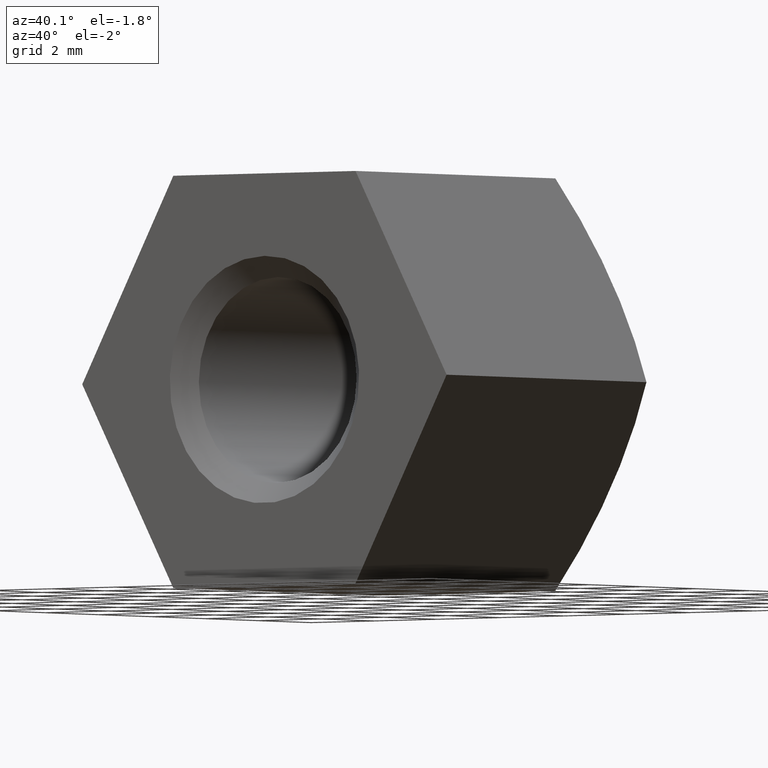
[diagram: clean part render]
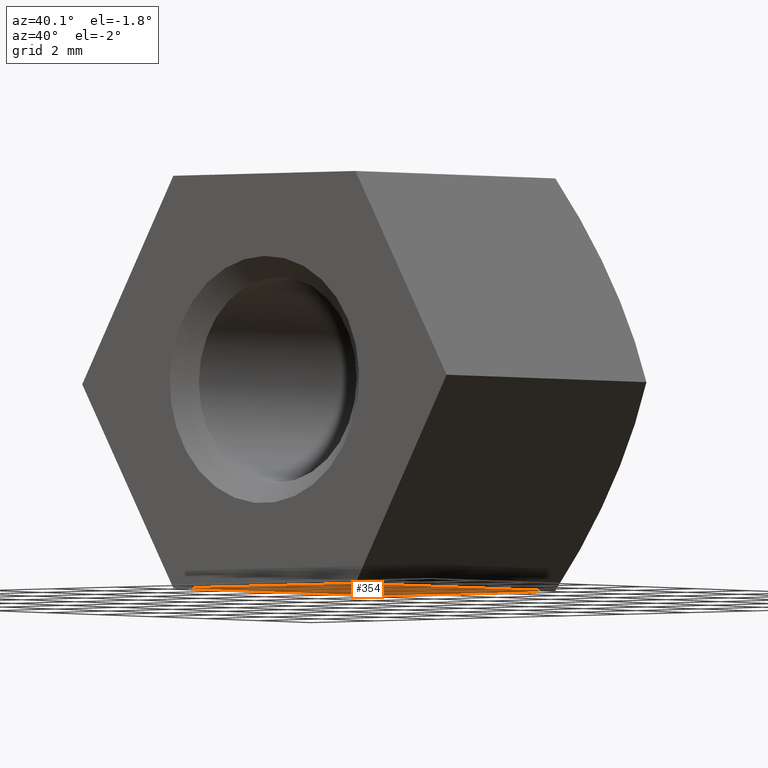
[diagram: same view with one face highlighted and labeled with its STEP entity id]
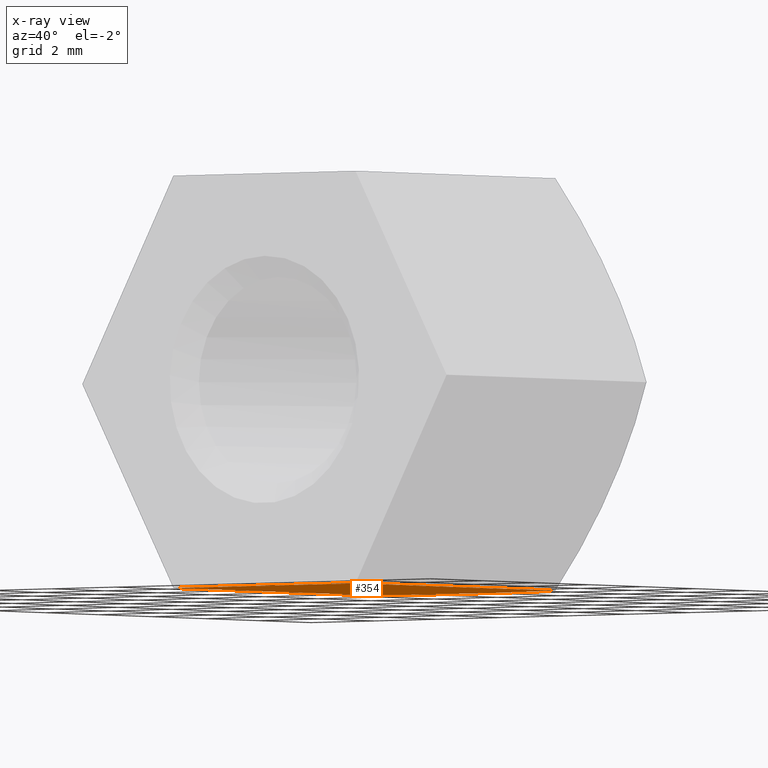
[diagram: x-ray of the same camera — body ghosted, the highlighted face saturated]
A machine part, auxiliary view. The second image highlights one B-rep face of the part: STEP entity #354.
The next image is the same camera in x-ray: the body ghosted, the highlighted face saturated — about 0% of this face is hidden behind the body in this view.
In plain terms, the highlighted planar face has unit normal (0, -0, 1).
Its self-contained STEP definition (entity closure, byte-faithful):
#204 = LINE ( 'NONE', #5366, #4210 ) ;
#349 = DIRECTION ( 'NONE',  ( 0.000000000000000000, -0.000000000000000000, 1.000000000000000000 ) ) ;
#354 = ADVANCED_FACE ( 'NONE', ( #3218 ), #13570, .F. ) ;
#2053 = CARTESIAN_POINT ( 'NONE',  ( -2.886751345948128655, 0.000000000000000000, -5.000000000000000888 ) ) ;
#2192 = VECTOR ( 'NONE', #4194, 1000.000000000000000 ) ;
#2568 = ORIENTED_EDGE ( 'NONE', *, *, #9883, .T. ) ;
#2678 = VECTOR ( 'NONE', #2728, 1000.000000000000000 ) ;
#2728 = DIRECTION ( 'NONE',  ( -1.000000000000000000, 0.000000000000000000, 0.000000000000000000 ) ) ;
#2752 = VERTEX_POINT ( 'NONE', #10694 ) ;
#3218 = FACE_OUTER_BOUND ( 'NONE', #9256, .T. ) ;
#3773 = EDGE_CURVE ( 'NONE', #10283, #2752, #7697, .T. ) ;
#3919 = ORIENTED_EDGE ( 'NONE', *, *, #11459, .T. ) ;
#4194 = DIRECTION ( 'NONE',  ( -0.000000000000000000, -1.000000000000000000, -0.000000000000000000 ) ) ;
#4210 = VECTOR ( 'NONE', #6581, 1000.000000000000000 ) ;
#4355 = AXIS2_PLACEMENT_3D ( 'NONE', #4784, #349, #5937 ) ;
#4784 = CARTESIAN_POINT ( 'NONE',  ( 2.886751345948122438, 9.000000000000000000, -5.000000000000000888 ) ) ;
#5088 = EDGE_CURVE ( 'NONE', #10283, #8040, #204, .T. ) ;
#5366 = CARTESIAN_POINT ( 'NONE',  ( -2.886751345948128655, 9.000000000000000000, -5.000000000000000888 ) ) ;
#5438 = LINE ( 'NONE', #8369, #2678 ) ;
#5937 = DIRECTION ( 'NONE',  ( 1.000000000000000000, 0.000000000000000000, -0.000000000000000000 ) ) ;
#6029 = AXIS2_PLACEMENT_3D ( 'NONE', #11204, #7898, #14171 ) ;
#6336 = LINE ( 'NONE', #14104, #2192 ) ;
#6418 = CARTESIAN_POINT ( 'NONE',  ( 2.886751345948122438, 0.000000000000000000, -5.000000000000000888 ) ) ;
#6581 = DIRECTION ( 'NONE',  ( -0.000000000000000000, -1.000000000000000000, -0.000000000000000000 ) ) ;
#7697 = CIRCLE ( 'NONE', #6029, 10.90871211463571377 ) ;
#7898 = DIRECTION ( 'NONE',  ( -0.000000000000000000, 0.000000000000000000, -1.000000000000000000 ) ) ;
#8040 = VERTEX_POINT ( 'NONE', #2053 ) ;
#8369 = CARTESIAN_POINT ( 'NONE',  ( 2.886751345948122438, 0.000000000000000000, -5.000000000000000888 ) ) ;
#9256 = EDGE_LOOP ( 'NONE', ( #14295, #9566, #2568, #3919 ) ) ;
#9566 = ORIENTED_EDGE ( 'NONE', *, *, #3773, .T. ) ;
#9883 = EDGE_CURVE ( 'NONE', #2752, #11283, #6336, .T. ) ;
#10283 = VERTEX_POINT ( 'NONE', #11440 ) ;
#10694 = CARTESIAN_POINT ( 'NONE',  ( 2.886751345948126435, 7.519822558706331428, -5.000000000000001776 ) ) ;
#11204 = CARTESIAN_POINT ( 'NONE',  ( 0.000000000000000000, -3.000000000000000888, -5.000000000000000888 ) ) ;
#11283 = VERTEX_POINT ( 'NONE', #6418 ) ;
#11440 = CARTESIAN_POINT ( 'NONE',  ( -2.886751345948127767, 7.519822558706331428, -5.000000000000000888 ) ) ;
#11459 = EDGE_CURVE ( 'NONE', #11283, #8040, #5438, .T. ) ;
#13570 = PLANE ( 'NONE',  #4355 ) ;
#14104 = CARTESIAN_POINT ( 'NONE',  ( 2.886751345948122438, 9.000000000000000000, -5.000000000000000888 ) ) ;
#14171 = DIRECTION ( 'NONE',  ( 1.000000000000000000, 1.788995703585930209E-15, 0.000000000000000000 ) ) ;
#14295 = ORIENTED_EDGE ( 'NONE', *, *, #5088, .F. ) ;